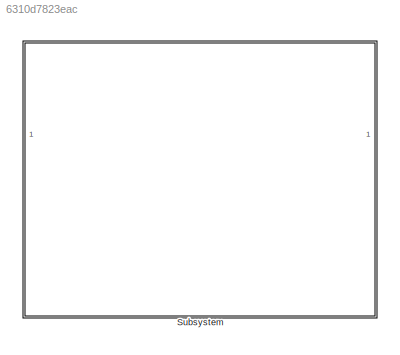
MODEL slx_6310d7823eac
KIND model
CONFIG AbsTol = auto
CONFIG EnableMultiTasking = off
CONFIG FixedStep = auto
CONFIG MaxStep = auto
CONFIG MinStep = auto
CONFIG RelTol = 1e-3
CONFIG SampleTimeConstraint = Unconstrained
CONFIG SolverName = VariableStepAuto
CONFIG StartTime = 0.0
CONFIG StopTime = 10.0
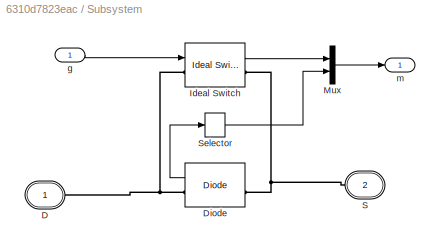
BLOCK [SubSystem] Subsystem
BLOCK [PMIOPort] Subsystem/D
  Side = Left
  Tag = PMCPort
BLOCK [Reference] Subsystem/Diode  REF=spsDiodeLib/Diode
  LibrarySourceBlock = sps_lib/Power Electronics/Diode
  SourceBlock = spsDiodeLib/Diode
  SourceType = Diode
BLOCK [Reference] Subsystem/Ideal Switch  REF=spsIdealSwitchLib/Ideal Switch
  LibrarySourceBlock = sps_lib/Power Electronics/Ideal Switch
  SourceBlock = spsIdealSwitchLib/Ideal Switch
  SourceType = Ideal Switch
BLOCK [Mux] Subsystem/Mux
  DisplayOption = bar
  Inputs = [2,1]
BLOCK [PMIOPort] Subsystem/S
  Port = 2
  Side = Right
  Tag = PMCPort
BLOCK [Selector] Subsystem/Selector
  IndexOptions = Index vector (dialog)
  Indices = 1
  InputPortWidth = 2
  OutputSizes = 1
BLOCK [Inport] Subsystem/g
BLOCK [Outport] Subsystem/m
  VectorParamsAs1DForOutWhenUnconnected = off
LINE Subsystem/Diode:1 -> Subsystem/Selector:1
LINE Subsystem/Ideal Switch:1 -> Subsystem/Mux:1
LINE Subsystem/Mux:1 -> Subsystem/m:1
LINE Subsystem/Selector:1 -> Subsystem/Mux:2
LINE Subsystem/g:1 -> Subsystem/Ideal Switch:1
PNET net1: Subsystem/D:RConn1 -- Subsystem/Diode:RConn1 -- Subsystem/Ideal Switch:LConn1
PNET net2: Subsystem/Diode:LConn1 -- Subsystem/Ideal Switch:RConn1 -- Subsystem/S:RConn1
note: PNET lines group multi-terminal physical nets as a canonical sorted terminal list (undirected conserving connections); 2-terminal nets keep the pairwise PLINE form
